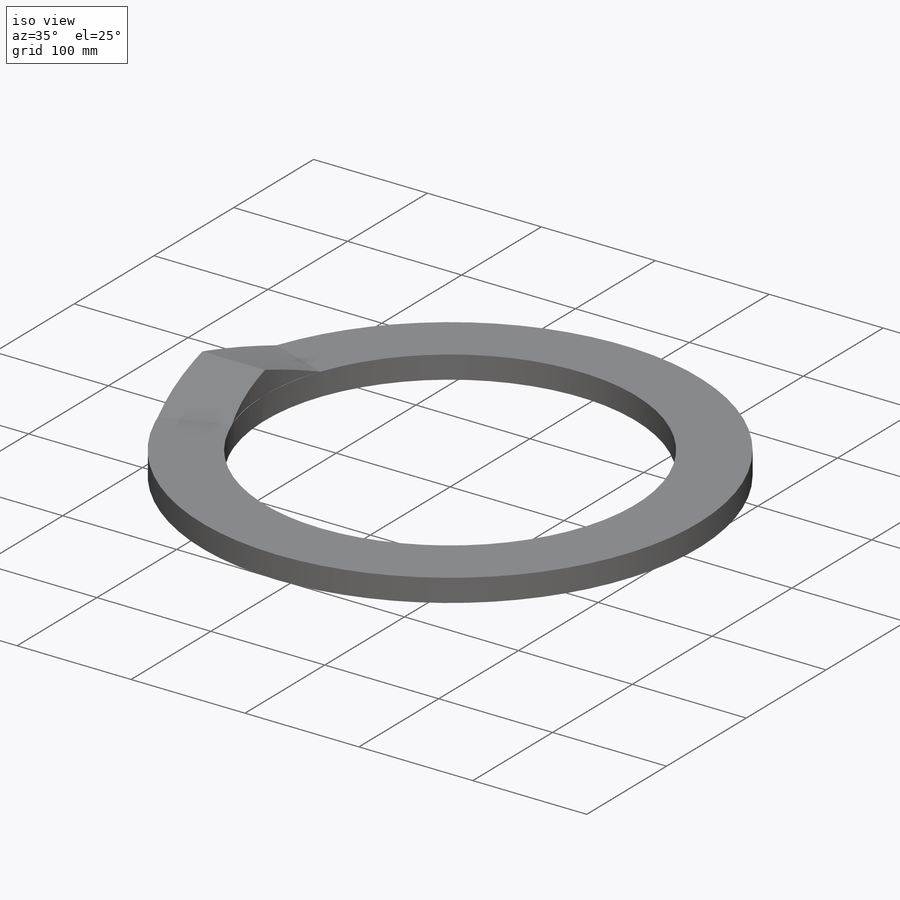
[diagram: iso view]
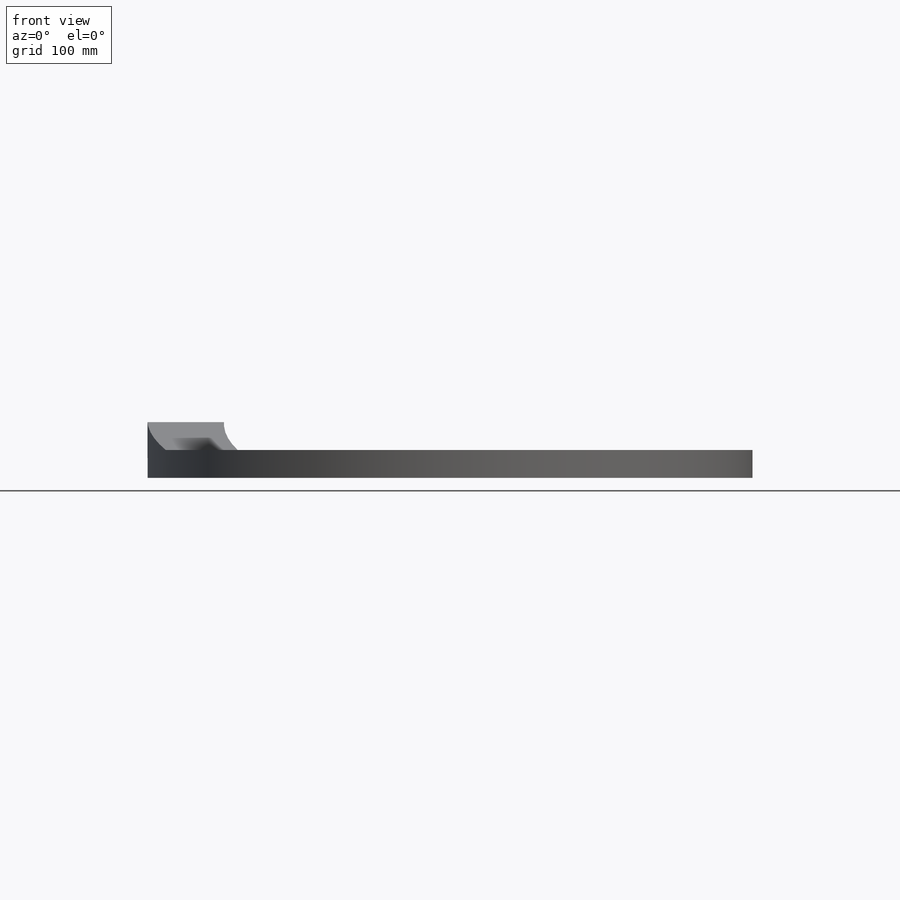
[diagram: front view]
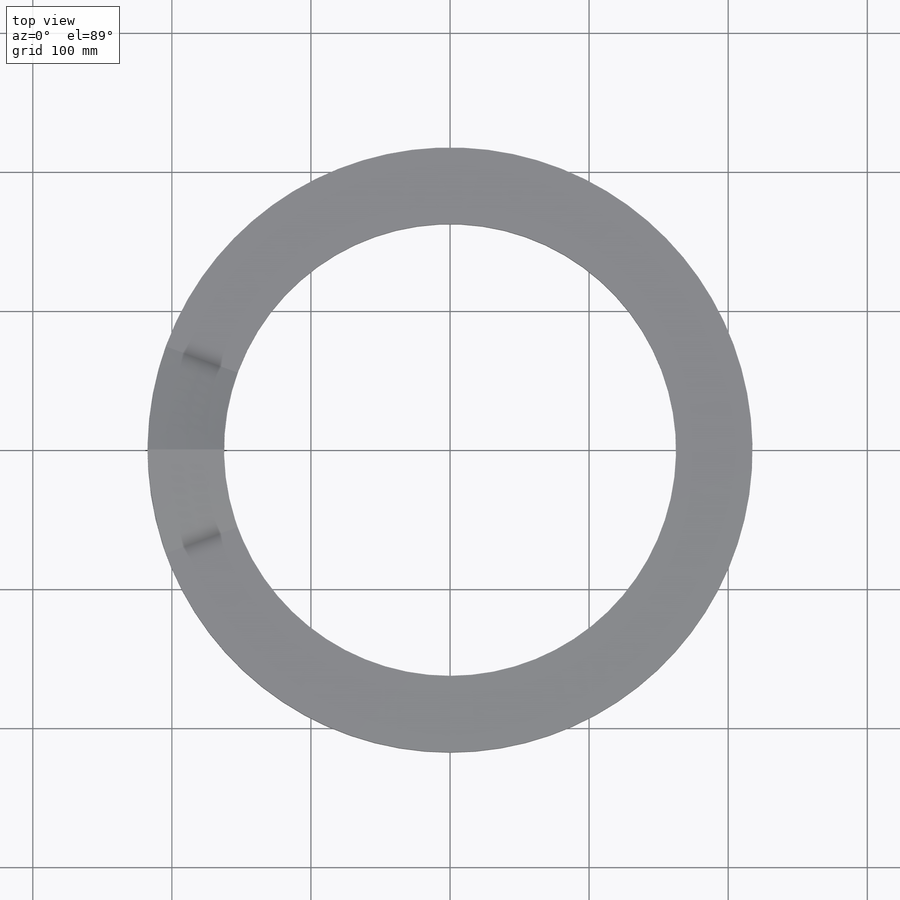
[diagram: top view]
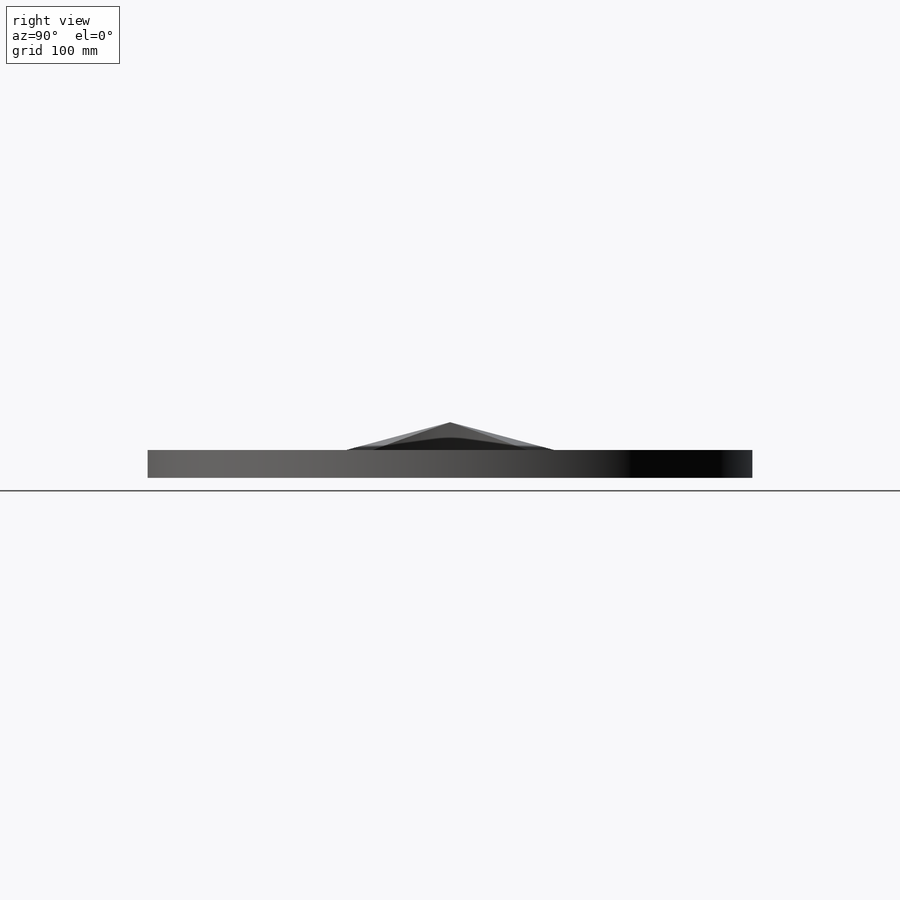
[diagram: right view]
SOLIDWORKS PART (.sldprt)
format: sldprt  version: not decoded by parser v0  size: 219,136 bytes
history: native  units: mm
features: plane x5, sketch x5, material x1, extrude x1, helix x1, mirror x1 (+9 scaffold rows collapsed)
feature tree (23):
  scaffold x9  (default folders/planes/origin — collapsed)
  material  "PE hochdicht"
  plane  "Ebene vorne"
  plane  "Ebene oben"
  plane  "Ebene rechts"
  sketch  "Skizze6"  dims[c1.D1=~542.718444mm c1.D2=~500.843187mm c1.D3=380.0mm c2.D1=27.5mm c2.D2=27.5mm]
  extrude  "Aufsatz-Linear austragen1"  Depth=10mm
  sketch  "Skizze7"  dims[D1=55.0mm D2=40.0mm]
  plane  "20"
  sketch  "Skizze8"  dims[D1=55.0mm D2=20.0mm]
  plane  "-20"
  sketch  "Skizze9"  dims[D1=55.0mm D2=20.0mm]
  sketch  "Skizze10"  dims[D1=380.0mm]
  helix  "Spirale/Helix1"  Pitch=20mm
  mirror  "Spiegeln1"
decode coverage: 7 of 8 modeling features carry decoded parameters
note: ~ marks probable driven/reference dimensions
note: suppression state not decoded; provenance and decode notes live in map.json
